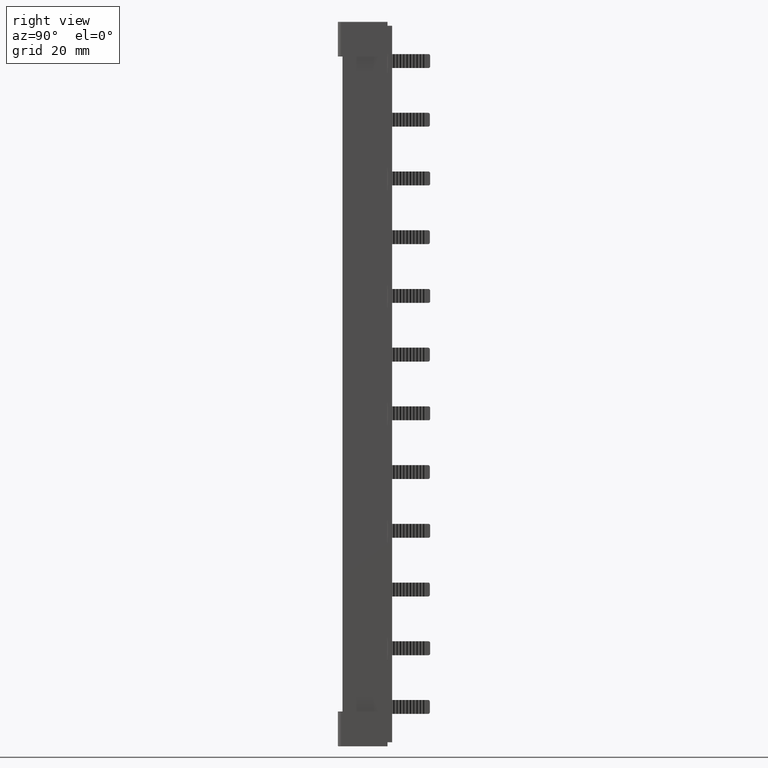
[diagram: clean part render]
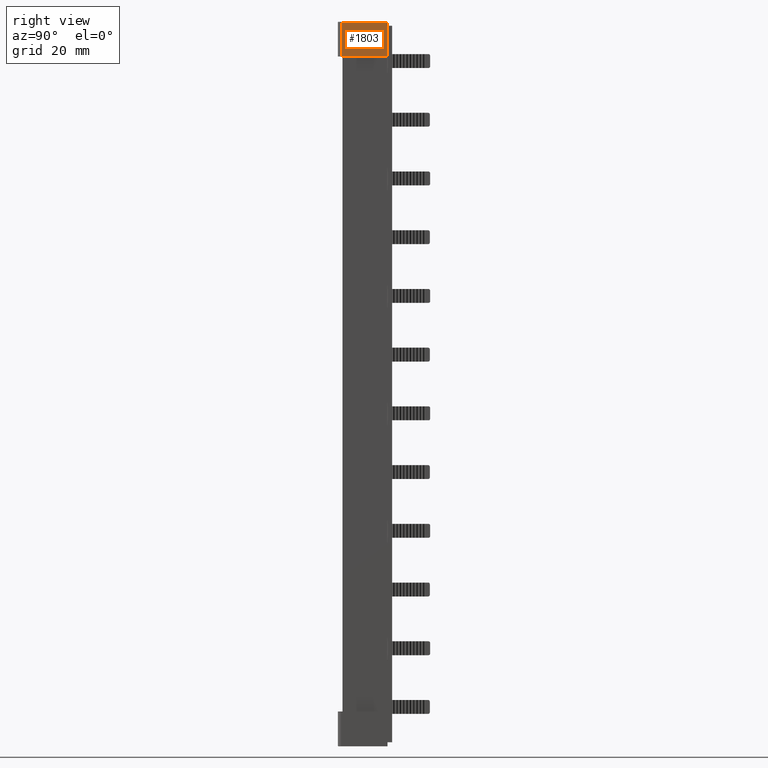
[diagram: same view with one face highlighted and labeled with its STEP entity id]
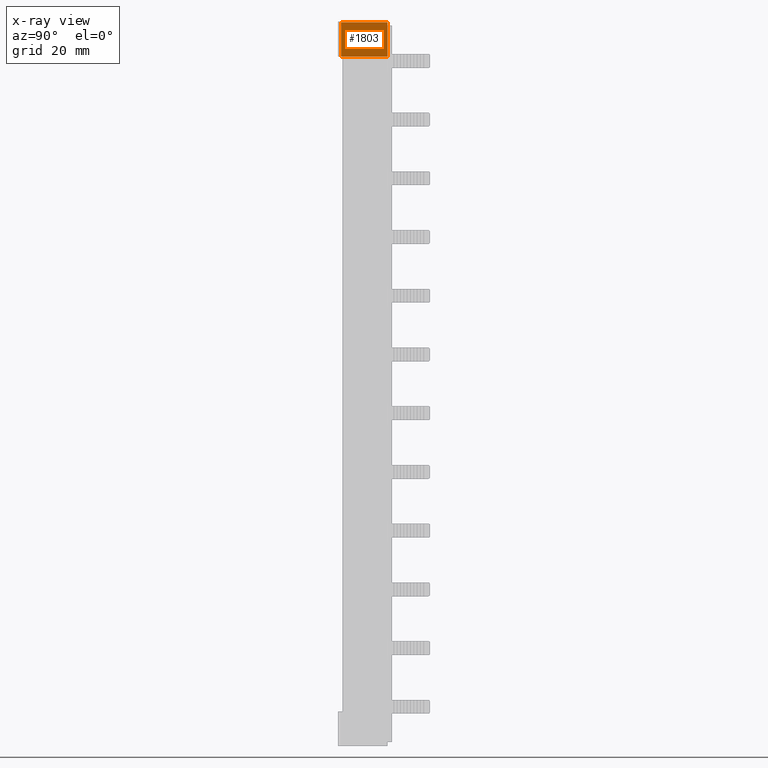
[diagram: x-ray of the same camera — body ghosted, the highlighted face saturated]
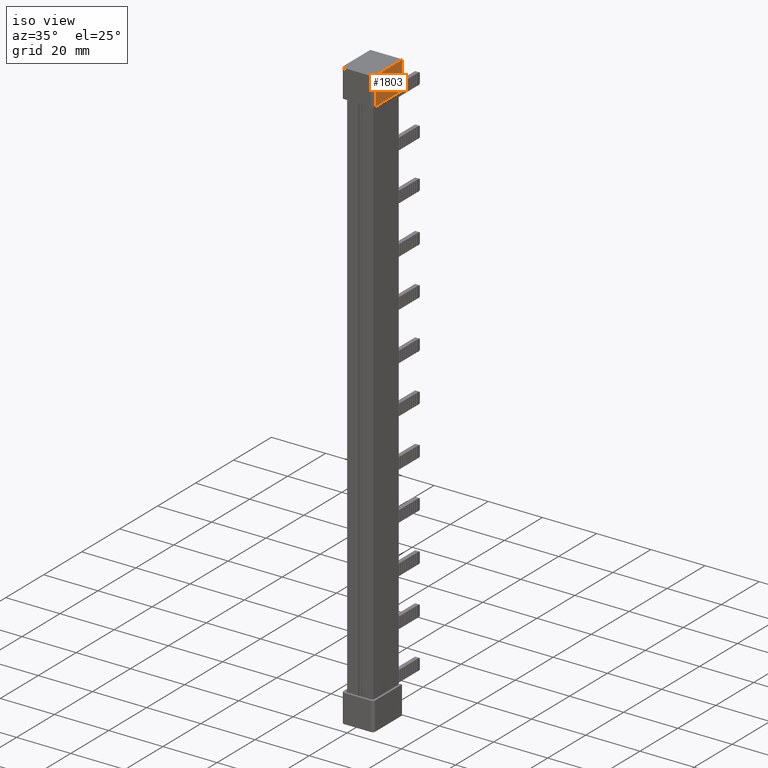
[diagram: same view with one face highlighted and labeled with its STEP entity id]
A machine part, right view. The second image highlights one B-rep face of the part: STEP entity #1803.
The next image is the same camera in x-ray: the body ghosted, the highlighted face saturated — about 0% of this face is hidden behind the body in this view.
A second angle (iso view) of the same face is appended — the face is thin or edge-on in the first view.
In plain terms, the highlighted planar face has unit normal (-1, 0, 0).
Its self-contained STEP definition (entity closure, byte-faithful):
#1803 = ADVANCED_FACE ( 'NONE', ( #13603 ), #13571, .F. ) ;
#2135 = EDGE_CURVE ( 'NONE', #17470, #17535, #2589, .T. ) ;
#2145 = EDGE_CURVE ( 'NONE', #17470, #17565, #2607, .T. ) ;
#2148 = EDGE_CURVE ( 'NONE', #17535, #17569, #2679, .T. ) ;
#2156 = EDGE_CURVE ( 'NONE', #17569, #17565, #2648, .T. ) ;
#2589 = LINE ( 'NONE', #2590, #19193 ) ;
#2590 = CARTESIAN_POINT ( 'NONE',  ( 10.70000000027068600, -0.3999999999998344900, 208.4999999999925800 ) ) ;
#2597 = DIRECTION ( 'NONE',  ( 0.0000000000000000000, -1.000000000000000000, 0.0000000000000000000 ) ) ;
#2607 = LINE ( 'NONE', #2628, #19213 ) ;
#2612 = DIRECTION ( 'NONE',  ( -0.0000000000000000000, 0.0000000000000000000, 1.000000000000000000 ) ) ;
#2628 = CARTESIAN_POINT ( 'NONE',  ( 10.70000000027151500, 13.60000000000009400, 208.4999999999926400 ) ) ;
#2631 = DIRECTION ( 'NONE',  ( 0.0000000000000000000, 1.000000000000000000, -0.0000000000000000000 ) ) ;
#2648 = LINE ( 'NONE', #2663, #19731 ) ;
#2663 = CARTESIAN_POINT ( 'NONE',  ( 10.70000000027864900, -0.3999999999998344900, 218.7999999999925900 ) ) ;
#2666 = CARTESIAN_POINT ( 'NONE',  ( 10.70000000027151700, -0.3999999999998344900, 208.4999999999926400 ) ) ;
#2679 = LINE ( 'NONE', #2666, #19535 ) ;
#2680 = DIRECTION ( 'NONE',  ( 6.924738560343257600E-013, 0.0000000000000000000, 1.000000000000000000 ) ) ;
#12205 = EDGE_LOOP ( 'NONE', ( #17811, #17765, #17826, #17842 ) ) ;
#13571 = PLANE ( 'NONE',  #19718 ) ;
#13603 = FACE_OUTER_BOUND ( 'NONE', #12205, .T. ) ;
#13605 = DIRECTION ( 'NONE',  ( 6.924738560343257600E-013, 0.0000000000000000000, 1.000000000000000000 ) ) ;
#13621 = DIRECTION ( 'NONE',  ( -1.000000000000000000, 0.0000000000000000000, 6.924738560343257600E-013 ) ) ;
#13637 = CARTESIAN_POINT ( 'NONE',  ( 10.70000000027151700, -0.3999999999998344900, 208.4999999999926400 ) ) ;
#17470 = VERTEX_POINT ( 'NONE', #20407 ) ;
#17535 = VERTEX_POINT ( 'NONE', #20466 ) ;
#17565 = VERTEX_POINT ( 'NONE', #20458 ) ;
#17569 = VERTEX_POINT ( 'NONE', #20469 ) ;
#17765 = ORIENTED_EDGE ( 'NONE', *, *, #2148, .F. ) ;
#17811 = ORIENTED_EDGE ( 'NONE', *, *, #2156, .F. ) ;
#17826 = ORIENTED_EDGE ( 'NONE', *, *, #2135, .F. ) ;
#17842 = ORIENTED_EDGE ( 'NONE', *, *, #2145, .T. ) ;
#19193 = VECTOR ( 'NONE', #2597, 1000.000000000000000 ) ;
#19213 = VECTOR ( 'NONE', #2612, 1000.000000000000000 ) ;
#19535 = VECTOR ( 'NONE', #2680, 1000.000000000000000 ) ;
#19718 = AXIS2_PLACEMENT_3D ( 'NONE', #13637, #13621, #13605 ) ;
#19731 = VECTOR ( 'NONE', #2631, 1000.000000000000000 ) ;
#20407 = CARTESIAN_POINT ( 'NONE',  ( 10.70000000027151500, 13.60000000000009400, 208.4999999999925800 ) ) ;
#20458 = CARTESIAN_POINT ( 'NONE',  ( 10.70000000027508200, 13.60000000000009400, 218.7999999999926500 ) ) ;
#20466 = CARTESIAN_POINT ( 'NONE',  ( 10.70000000027068600, -0.3999999999998344900, 208.4999999999925800 ) ) ;
#20469 = CARTESIAN_POINT ( 'NONE',  ( 10.70000000027864900, -0.3999999999998344900, 218.7999999999925900 ) ) ;